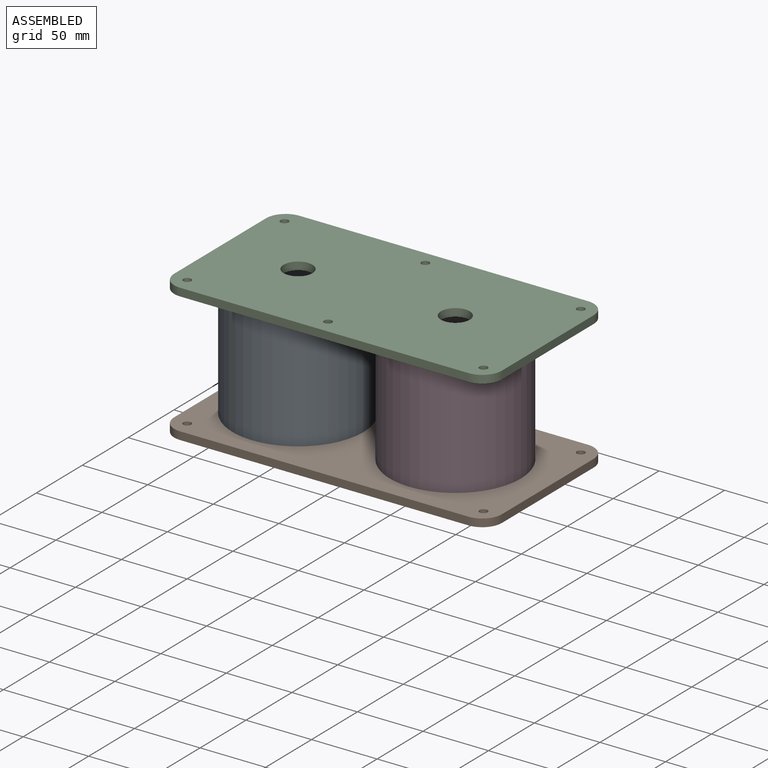
[diagram: assembled view]
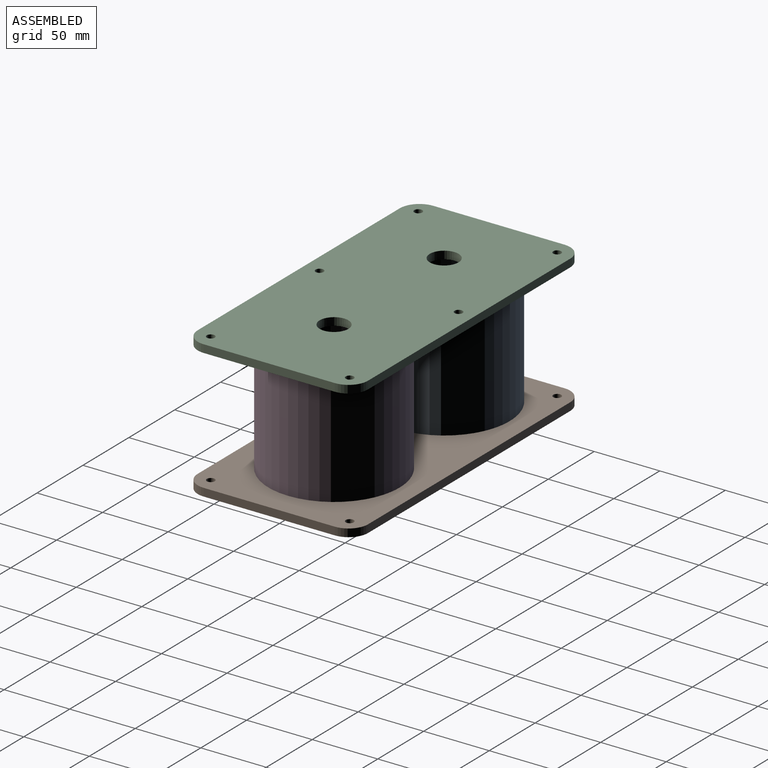
[diagram: assembled view, second angle]
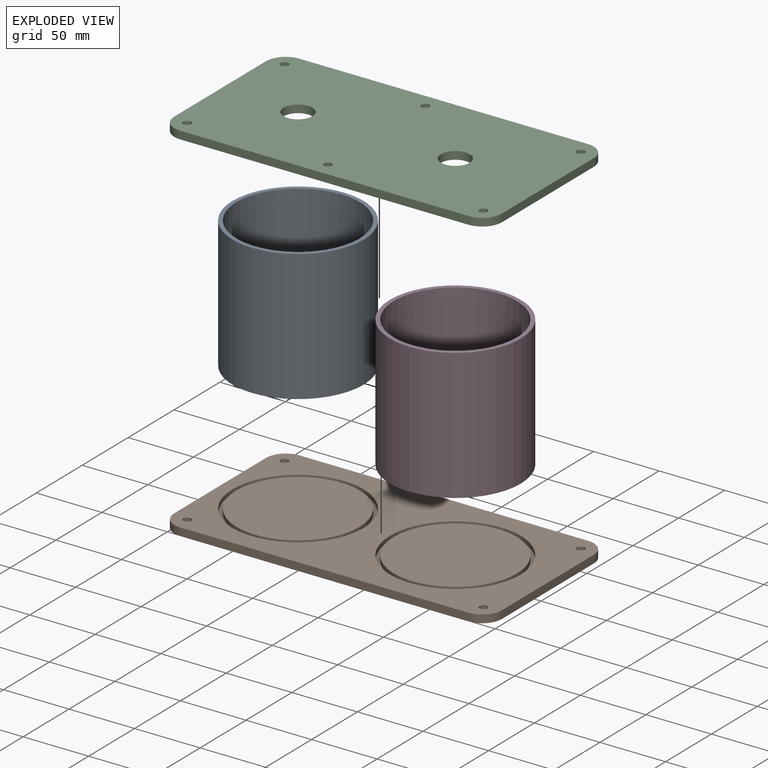
[diagram: exploded view]
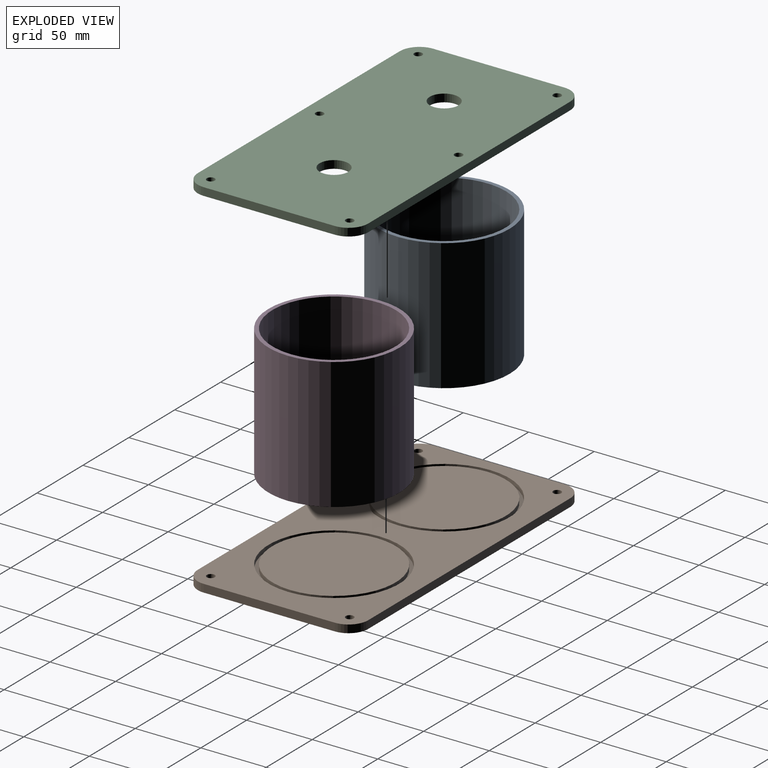
[diagram: exploded view, second angle]
ASSEMBLY  parts=4 mates=3
PART A: 4 faces, bbox 100x100x100 mm
  f0: cylinder r=47mm len=100mm, axis (0,0,-1), area 29531mm2, adj f2,f3
  f1: cylinder r=50mm len=100mm, axis (0,0,-1), area 31415.9mm2, adj f2,f3
  f2: plane 100x100mm, normal (0,0,1), area 914.2mm2, adj f0,f1
  f3: plane 100x100mm, normal (0,0,-1), area 914.2mm2, adj f0,f1
PART B: 22 faces, bbox 250x130x6 mm
  f0: plane 250x130mm, normal (0,0,1), area 16482mm2, adj f1,f2,f3,f4,f6,f7,f8,f9
  f1: plane 220x6mm, normal (0,-1,0), area 1320mm2, adj f0,f5,f6,f9
  f2: plane 100x6mm, normal (1,0,0), area 600mm2, adj f0,f5,f6,f7
  f3: plane 220x6mm, normal (0,1,0), area 1320mm2, adj f0,f5,f7,f8
  f4: plane 100x6mm, normal (-1,0,0), area 600mm2, adj f0,f5,f8,f9
  f5: plane 250x130mm, normal (0,0,-1), area 32190mm2, adj f1,f2,f3,f4,f6,f7,f8,f9
  f6: cylinder r=15mm len=15mm, axis (0,0,1), area 141.4mm2, adj f0,f1,f2,f5
  f7: cylinder r=15mm len=15mm, axis (0,0,-1), area 141.4mm2, adj f0,f2,f3,f5
  f8: cylinder r=15mm len=15mm, axis (0,0,1), area 141.4mm2, adj f0,f3,f4,f5
  f9: cylinder r=15mm len=15mm, axis (0,0,-1), area 141.4mm2, adj f0,f1,f4,f5
  f10: cylinder r=50mm len=100mm, axis (0,0,1), area 1099.6mm2, adj f0,f12
  f11: cylinder r=47mm len=94mm, axis (0,0,1), area 1033.6mm2, adj f12,f17
  f12: plane 100x100mm, normal (0,0,1), area 914.2mm2, adj f10,f11
  f13: cylinder r=47mm len=94mm, axis (0,0,1), area 1033.6mm2, adj f15,f16
  f14: cylinder r=50mm len=100mm, axis (0,0,1), area 1099.6mm2, adj f0,f15
  f15: plane 100x100mm, normal (0,0,1), area 914.2mm2, adj f13,f14
  f16: plane 94x94mm, normal (0,0,1), area 6939.8mm2, adj f13
  f17: plane 94x94mm, normal (0,0,1), area 6939.8mm2, adj f11
  f18: cylinder r=3.05mm len=6.1mm, axis (0,0,1), area 115mm2, adj f0,f5
  f19: cylinder r=3.05mm len=6.1mm, axis (0,0,1), area 115mm2, adj f0,f5
  f20: cylinder r=3.05mm len=6.1mm, axis (0,0,1), area 115mm2, adj f0,f5
  f21: cylinder r=3.05mm len=6.1mm, axis (0,0,1), area 115mm2, adj f0,f5
PART C: 26 faces, bbox 250x130x6 mm
  f0: plane 250x130mm, normal (0,0,1), area 31371.2mm2, adj f2,f3,f4,f5,f6,f7,f8,f9
  f1: plane 250x130mm, normal (0,0,-1), area 16423.5mm2, adj f2,f3,f4,f5,f6,f7,f8,f9
  f2: plane 220x6mm, normal (0,-1,0), area 1320mm2, adj f0,f1,f6,f9
  f3: plane 100x6mm, normal (1,0,0), area 600mm2, adj f0,f1,f6,f7
  f4: plane 220x6mm, normal (0,1,0), area 1320mm2, adj f0,f1,f7,f8
  f5: plane 100x6mm, normal (-1,0,0), area 600mm2, adj f0,f1,f8,f9
  f6: cylinder r=15mm len=15mm, axis (0,0,1), area 141.4mm2, adj f0,f1,f2,f3
  f7: cylinder r=15mm len=15mm, axis (0,0,-1), area 141.4mm2, adj f0,f1,f3,f4
  f8: cylinder r=15mm len=15mm, axis (0,0,1), area 141.4mm2, adj f0,f1,f4,f5
  f9: cylinder r=15mm len=15mm, axis (0,0,-1), area 141.4mm2, adj f0,f1,f2,f5
  f10: cylinder r=3.05mm len=6.1mm, axis (0,0,1), area 115mm2, adj f0,f1
  f11: cylinder r=3.05mm len=6.1mm, axis (0,0,1), area 115mm2, adj f0,f1
  f12: cylinder r=3.05mm len=6.1mm, axis (0,0,1), area 115mm2, adj f0,f1
  f13: cylinder r=3.05mm len=6.1mm, axis (0,0,1), area 115mm2, adj f0,f1
  f14: cylinder r=3.05mm len=6.1mm, axis (0,0,1), area 115mm2, adj f0,f1
  f15: cylinder r=3.05mm len=6.1mm, axis (0,0,1), area 115mm2, adj f0,f1
  f16: cylinder r=50mm len=100mm, axis (0,0,-1), area 1099.6mm2, adj f1,f18
  f17: cylinder r=47mm len=94mm, axis (0,0,-1), area 1033.6mm2, adj f18,f23
  f18: plane 100x100mm, normal (0,0,-1), area 914.2mm2, adj f16,f17
  f19: cylinder r=47mm len=94mm, axis (0,0,-1), area 1033.6mm2, adj f21,f22
  f20: cylinder r=50mm len=100mm, axis (0,0,-1), area 1099.6mm2, adj f1,f21
  f21: plane 100x100mm, normal (0,0,-1), area 914.2mm2, adj f19,f20
  f22: plane 94x94mm, normal (0,0,-1), area 6559.6mm2, adj f19,f25
  f23: plane 94x94mm, normal (0,0,-1), area 6559.6mm2, adj f17,f24
  f24: cylinder r=11mm len=22mm, axis (0,0,1), area 414.7mm2, adj f0,f23
  f25: cylinder r=11mm len=22mm, axis (0,0,1), area 414.7mm2, adj f0,f22
PART D: same geometry as A
PLACE A t=(-65.28,-0.04,-0.82)mm
PLACE B t=(-5.28,-0.04,-3.32)mm
PLACE C t=(-5.28,-0.04,95.68)mm
PLACE D t=(54.72,-0.04,-0.82)mm
MATE fastened D.f1 <-> B.f10  axis (0,0,-1) through (54.72,-0.04,-0.82)mm
MATE fastened C.f20 <-> A.f1  axis (0,0,-1) through (-65.28,-0.04,99.18)mm
MATE fastened A.f1 <-> B.f14  axis (0,0,-1) through (-65.28,-0.04,-0.82)mm
